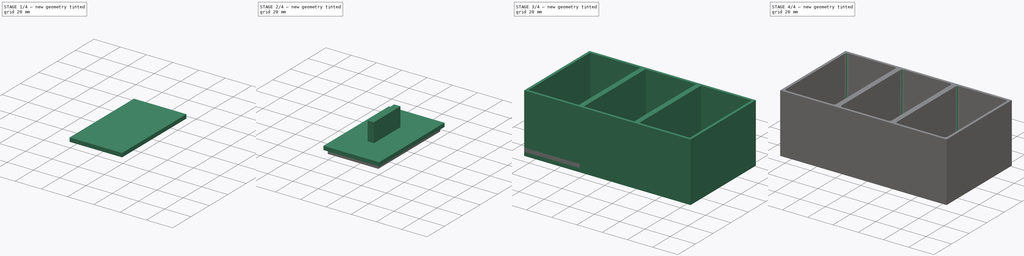
[diagram: build sequence overview — one tinted view per stage of 4, left to right]
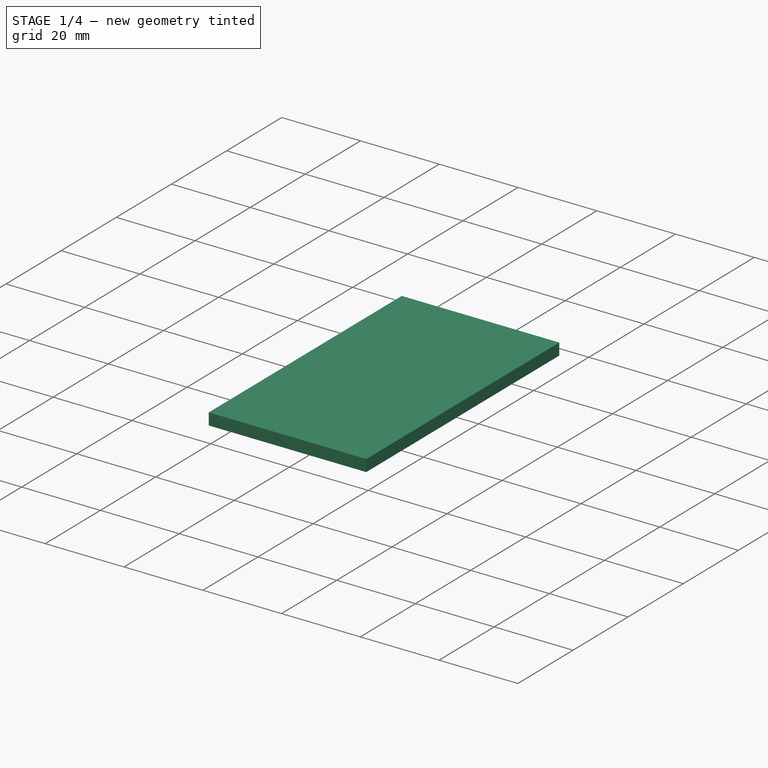
[diagram: stage 1 of 4 — iso view after this stage's code; geometry added in this stage tinted green]
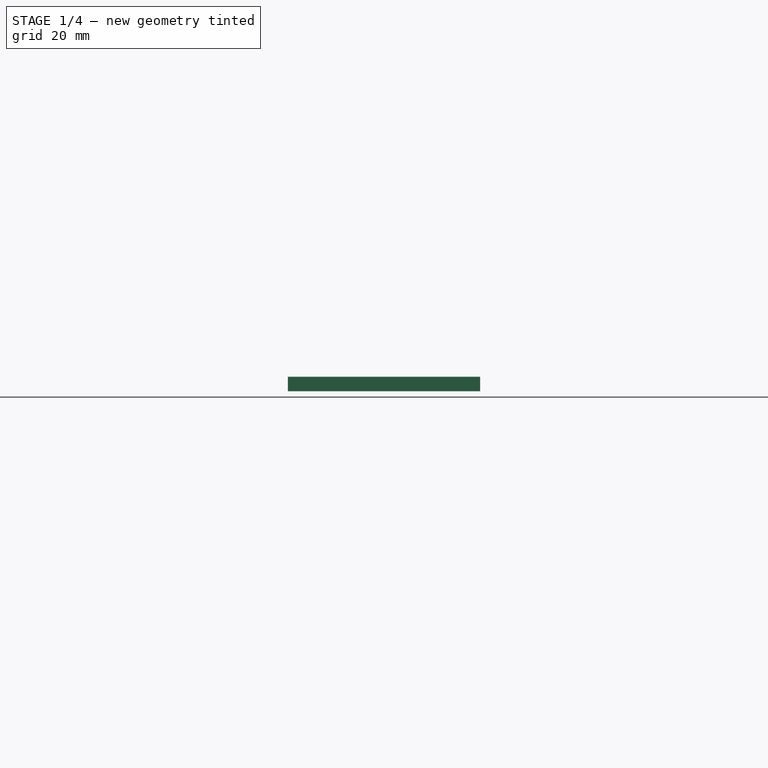
[diagram: stage 1 of 4 — front view after this stage's code; geometry added in this stage tinted green]
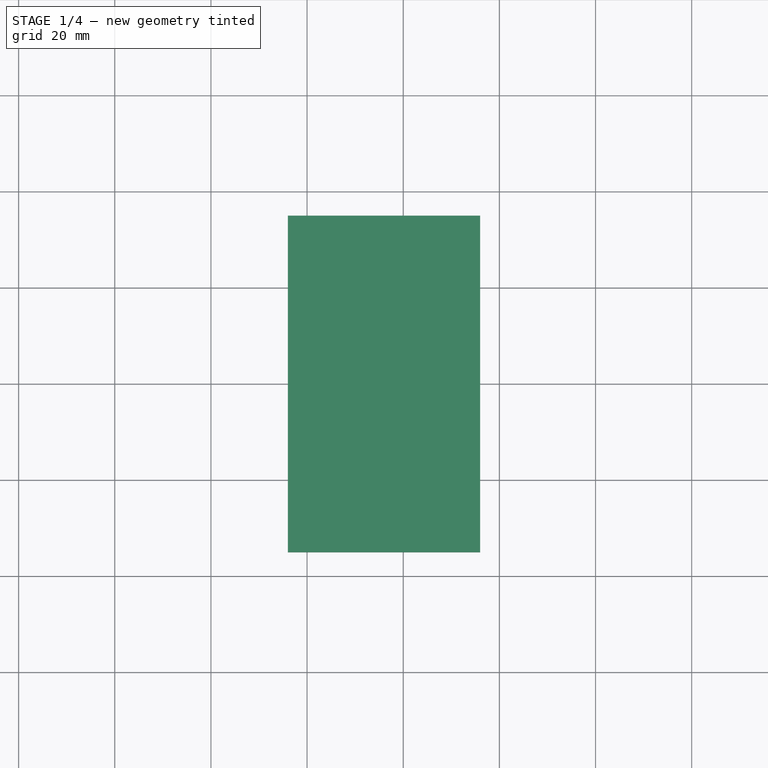
[diagram: stage 1 of 4 — top view after this stage's code; geometry added in this stage tinted green]
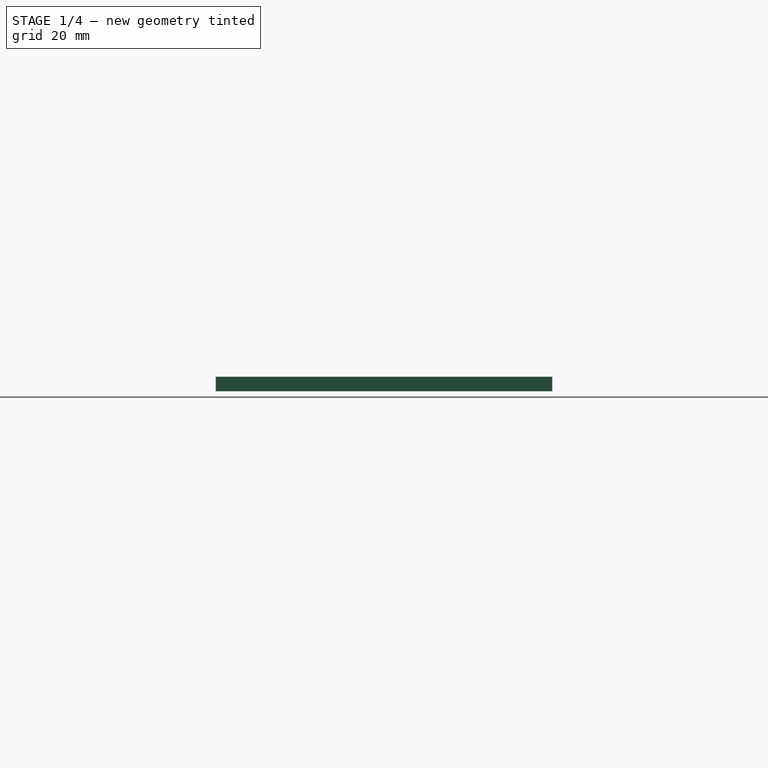
[diagram: stage 1 of 4 — right view after this stage's code; geometry added in this stage tinted green]
FCSTD DOCUMENT  (FreeCAD 1.0R39109 (Git))
Label: CompartmentedContainer
License: Creative Commons Attribution 4.0
LicenseURL: https://creativecommons.org/licenses/by/4.0/
objects: Sketcher::SketchObject×5, PartDesign::Pad×4, PartDesign::Fillet×3, PartDesign::Body×2, App::Part×2, Spreadsheet::Sheet×1, PartDesign::Pocket×1, PartDesign::LinearPattern×1, PartDesign::ShapeBinder×1
note: 39 computed .brp shape members not serialized (recipe doc carries the construction recipe); baked Part::Feature solids carry a one-line shape summary decoded from their .brp

FEATURE [Spreadsheet::Sheet] Spreadsheet  label="config"
  cells = A3='compartmentWidth; B3='mm; C3(compartmentWidth)=40; A4='compartmentLength; B4='mm; C4(compartmentLength)=70; A5='compartmentDepth; B5='mm; C5(compartmentDepth)=45; A6='numberOfComparments; B6='none; C6(numberOfCompartments)=3; A7='sealWidth; B7='mm; C7(sealWidth)=0; A8='outerShellThickness; B8='mm; C8(outerShellThickness)=2; A9='innerShellThickness; B9='mm; C9(innerShellThickness)=0; A10='spaceBetweenCompartments; B10='mm; C10(spaceBetweenCompartments)=4; A11='plugDepth; B11='mm; C11(plugDepth)=3; A12='plugLip; B12='mm; C12(plugLip)=2; A13='plugLipDepth; B13='mm; C13(plugLipDepth)=3; A14='plugHandleWidth; B14='mm; C14(plugHandleWidth)=5; A15='plugHandleLength; B15='mm; C15(plugHandleLength)=30; A16='plugHandleHeight; B16='mm; C16(plugHandleHeight)=15; A17='containerFilletRadius; B17='mm; C17(containerFilletRadius)=2
FEATURE [Sketcher::SketchObject] Sketch
  ArcFitTolerance = 1e-06
  AttachmentSupport = -> [XY_Plane003]
  FullyConstrained = true
  MakeInternals = false
  MapMode = 5
  expr: Constraints[10] = <<config>>.compartmentLength + 2 * (<<config>>.outerShellThickness + <<config>>.sealWidth + <<config>>.innerShellThickness)
  expr: Constraints[9] = <<config>>.compartmentWidth * <<config>>.numberOfCompartments + 2 * (<<config>>.outerShellThickness + <<config>>.sealWidth + <<config>>.innerShellThickness) + (<<config>>.numberOfCompartments - 1) * <<config>>.spaceBetweenCompartments
  sketch-geometry (5):
    g0: LineSegment StartX=-66 StartY=-37 StartZ=0 EndX=66 EndY=-37 EndZ=0
    g1: LineSegment StartX=66 StartY=-37 StartZ=0 EndX=66 EndY=37 EndZ=0
    g2: LineSegment StartX=66 StartY=37 StartZ=0 EndX=-66 EndY=37 EndZ=0
    g3: LineSegment StartX=-66 StartY=37 StartZ=0 EndX=-66 EndY=-37 EndZ=0
    g4: GeomPoint [constr] X=0 Y=0 Z=0
  constraints (12):
    c: Coincident(g0,g1)
    c: Coincident(g1,g2)
    c: Coincident(g2,g3)
    c: Coincident(g3,g0)
    c: Horizontal(g0)
    c: Horizontal(g2)
    c: Vertical(g1)
    c: Vertical(g3)
    c: Symmetric(g2,g0,g4)
    c: Distance(g1,g3) = 132
    c: Distance(g0,g2) = 74
    c: Coincident(g4,g-1)
FEATURE [PartDesign::Pad] Pad
  Direction = (0,0,1)
  Length = 47
  Length2 = 10
  Profile = -> Sketch
  ReferenceAxis = -> Sketch [N_Axis]
  Suppressed = false
  Type = 0
  expr: Length = <<config>>.compartmentDepth + <<config>>.outerShellThickness
FEATURE [PartDesign::ShapeBinder] ShapeBinder
  Placement = pos=(0,0,47) rot=(0,0,1;0rad)
  Support = -> [Sketch001]
  TraceSupport = false
FEATURE [Sketcher::SketchObject] Sketch002
  ArcFitTolerance = 1e-06
  AttachmentSupport = -> [XY_Plane004]
  ExternalGeometry = -> [ShapeBinder]
  FullyConstrained = true
  MakeInternals = false
  MapMode = 5
  sketch-geometry (4):
    g0: LineSegment StartX=-64 StartY=35 StartZ=0 EndX=-64 EndY=-35 EndZ=0
    g1: LineSegment StartX=-64 StartY=-35 StartZ=0 EndX=-24 EndY=-35 EndZ=0
    g2: LineSegment StartX=-24 StartY=-35 StartZ=0 EndX=-24 EndY=35 EndZ=0
    g3: LineSegment StartX=-24 StartY=35 StartZ=0 EndX=-64 EndY=35 EndZ=0
  constraints (10):
    c: Coincident(g0,g1)
    c: Coincident(g1,g2)
    c: Coincident(g2,g3)
    c: Coincident(g3,g0)
    c: Vertical(g0)
    c: Vertical(g2)
    c: Horizontal(g1)
    c: Horizontal(g3)
    c: Coincident(g0,g-3)
    c: Coincident(g1,g-4)
FEATURE [PartDesign::Pad] Pad001
  Direction = (0,0,1)
  Length = 3
  Length2 = 10
  Profile = -> Sketch002
  ReferenceAxis = -> Sketch002 [N_Axis]
  Suppressed = false
  Type = 0
  expr: Length = <<config>>.plugDepth
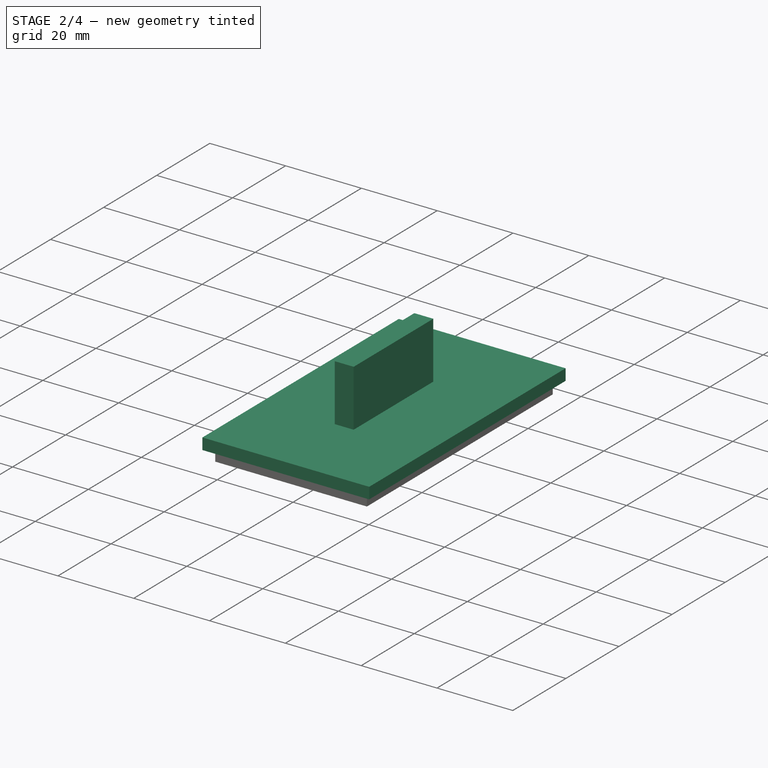
[diagram: stage 2 of 4 — iso view after this stage's code; geometry added in this stage tinted green]
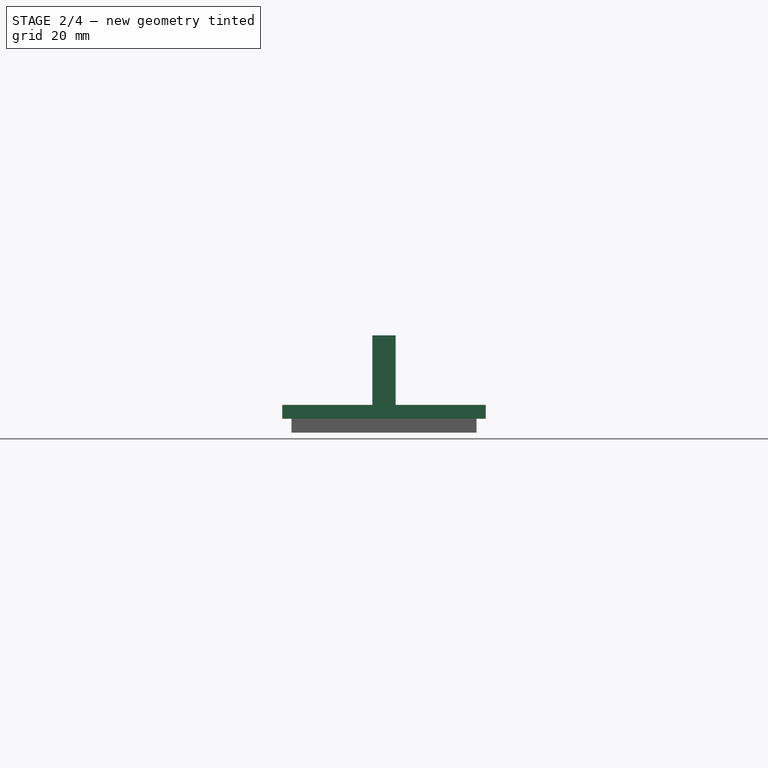
[diagram: stage 2 of 4 — front view after this stage's code; geometry added in this stage tinted green]
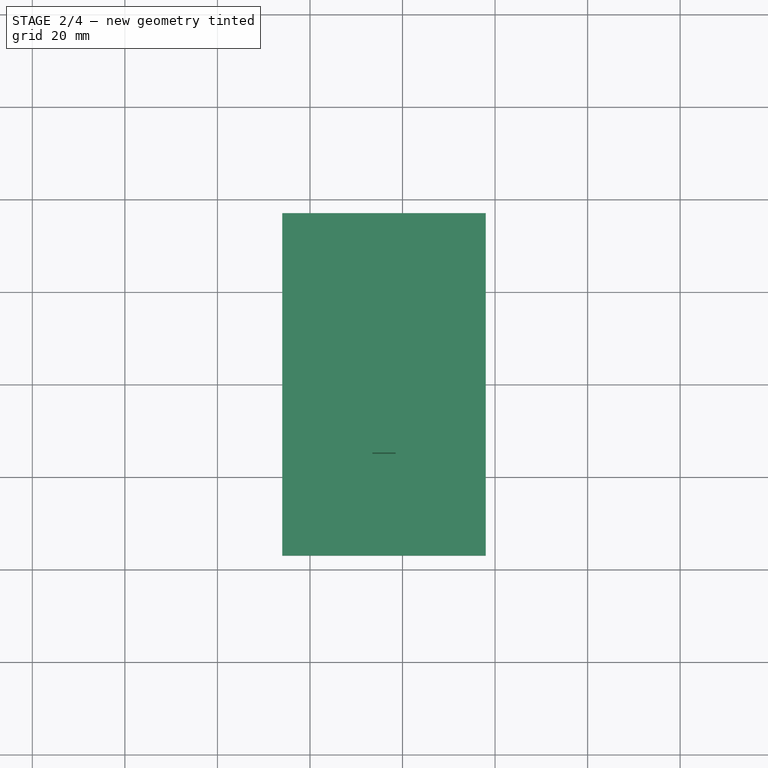
[diagram: stage 2 of 4 — top view after this stage's code; geometry added in this stage tinted green]
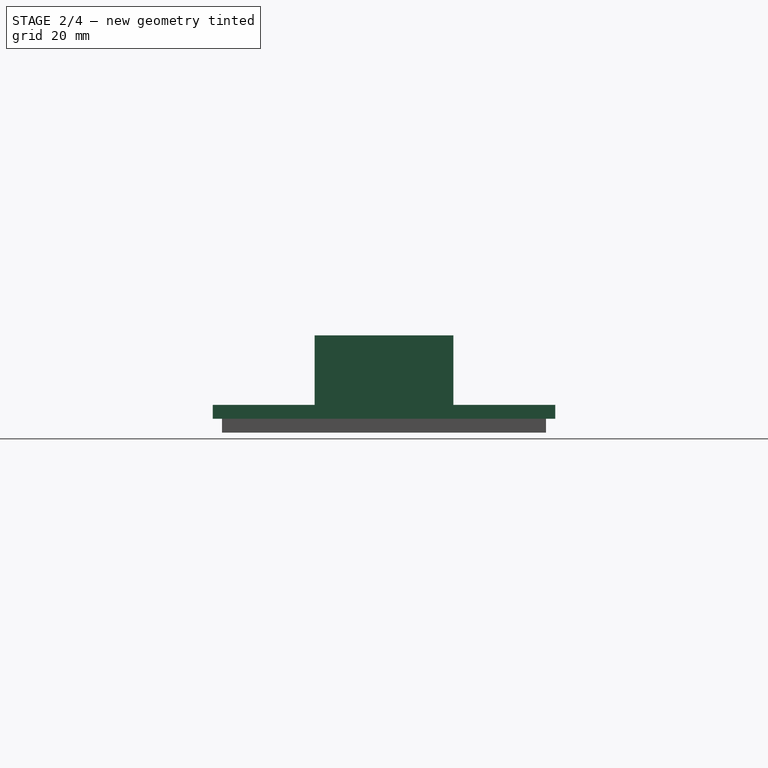
[diagram: stage 2 of 4 — right view after this stage's code; geometry added in this stage tinted green]
FEATURE [Sketcher::SketchObject] Sketch003
  ArcFitTolerance = 1e-06
  AttachmentOffset = pos=(0,0,3) rot=(0,0,1;0rad)
  AttachmentSupport = -> [XY_Plane004]
  ExternalGeometry = -> [ShapeBinder]
  FullyConstrained = true
  MakeInternals = false
  MapMode = 5
  Placement = pos=(0,0,3) rot=(0,0,1;0rad)
  expr: .AttachmentOffset.Base.z = <<config>>.plugDepth
  expr: Constraints[10] = <<config>>.plugLip
  expr: Constraints[11] = <<config>>.plugLip
  expr: Constraints[8] = <<config>>.plugLip
  expr: Constraints[9] = <<config>>.plugLip
  sketch-geometry (4):
    g0: LineSegment StartX=-66 StartY=37 StartZ=0 EndX=-66 EndY=-37 EndZ=0
    g1: LineSegment StartX=-66 StartY=-37 StartZ=0 EndX=-22 EndY=-37 EndZ=0
    g2: LineSegment StartX=-22 StartY=-37 StartZ=0 EndX=-22 EndY=37 EndZ=0
    g3: LineSegment StartX=-22 StartY=37 StartZ=0 EndX=-66 EndY=37 EndZ=0
  constraints (12):
    c: Coincident(g0,g1)
    c: Coincident(g1,g2)
    c: Coincident(g2,g3)
    c: Coincident(g3,g0)
    c: Vertical(g0)
    c: Vertical(g2)
    c: Horizontal(g1)
    c: Horizontal(g3)
    c: DistanceX(g0,g-3) = 2
    c: DistanceX(g-4,g1) = 2
    c: DistanceY(g0,g-4) = 2
    c: DistanceY(g-3,g0) = 2
FEATURE [PartDesign::Pad] Pad002
  BaseFeature = -> Pad001
  Direction = (0,0,1)
  Length = 3
  Length2 = 10
  Profile = -> Sketch003
  ReferenceAxis = -> Sketch003 [N_Axis]
  Suppressed = false
  Type = 0
  expr: Length = <<config>>.plugLipDepth
FEATURE [Sketcher::SketchObject] Sketch004
  ArcFitTolerance = 1e-06
  AttachmentOffset = pos=(0,0,6) rot=(0,0,1;0rad)
  AttachmentSupport = -> [XY_Plane004]
  ExternalGeometry = -> [ShapeBinder]
  FullyConstrained = true
  MakeInternals = false
  MapMode = 5
  Placement = pos=(0,0,6) rot=(0,0,1;0rad)
  expr: .AttachmentOffset.Base.z = <<config>>.plugDepth + <<config>>.plugLipDepth
  expr: Constraints[10] = <<config>>.plugHandleWidth
  expr: Constraints[11] = <<config>>.plugHandleLength
  sketch-geometry (6):
    g0: GeomPoint X=-44 Y=-3.5e-15 Z=0
    g1: LineSegment StartX=-46.5 StartY=-15 StartZ=0 EndX=-41.5 EndY=-15 EndZ=0
    g2: LineSegment StartX=-41.5 StartY=-15 StartZ=0 EndX=-41.5 EndY=15 EndZ=0
    g3: LineSegment StartX=-41.5 StartY=15 StartZ=0 EndX=-46.5 EndY=15 EndZ=0
    g4: LineSegment StartX=-46.5 StartY=15 StartZ=0 EndX=-46.5 EndY=-15 EndZ=0
    g5: GeomPoint [constr] X=-44 Y=-3.5e-15 Z=0
  constraints (13):
    c: Symmetric(g-3,g-4,g0)
    c: Coincident(g1,g2)
    c: Coincident(g2,g3)
    c: Coincident(g3,g4)
    c: Coincident(g4,g1)
    c: Horizontal(g1)
    c: Horizontal(g3)
    c: Vertical(g2)
    c: Vertical(g4)
    c: Symmetric(g3,g1,g5)
    c: Distance(g2,g4) = 5
    c: Distance(g1,g3) = 30
    c: Coincident(g5,g0)
FEATURE [PartDesign::Pad] Pad003
  BaseFeature = -> Pad002
  Direction = (0,0,1)
  Length = 15
  Length2 = 10
  Profile = -> Sketch004
  ReferenceAxis = -> Sketch004 [N_Axis]
  Suppressed = false
  Type = 0
  expr: Length = <<config>>.plugHandleHeight
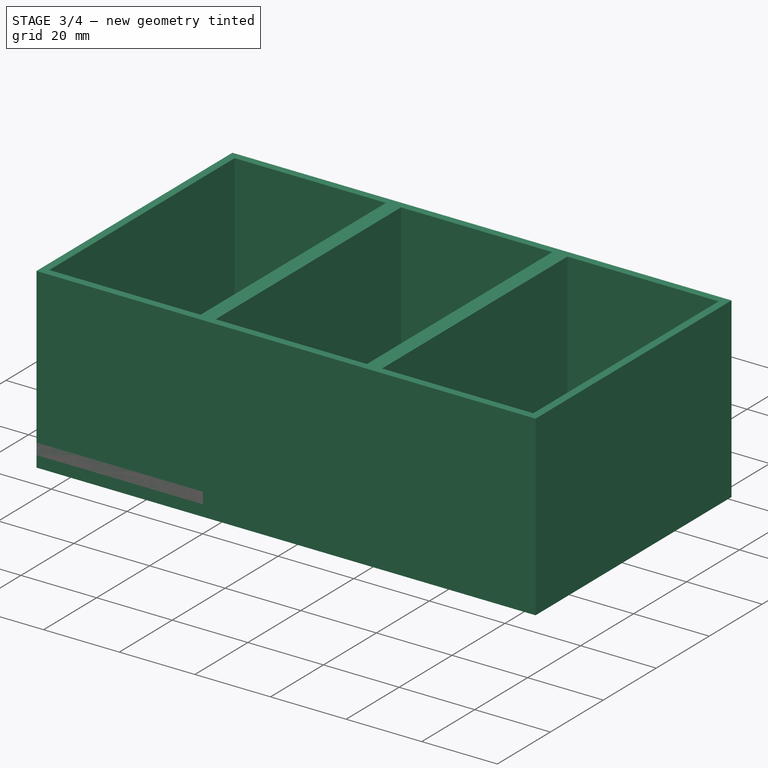
[diagram: stage 3 of 4 — iso view after this stage's code; geometry added in this stage tinted green]
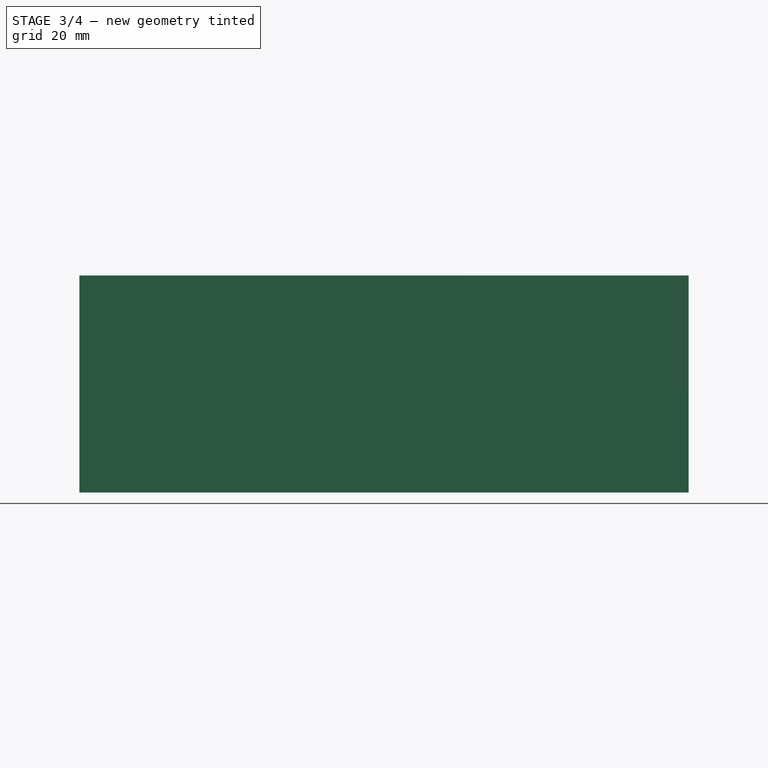
[diagram: stage 3 of 4 — front view after this stage's code; geometry added in this stage tinted green]
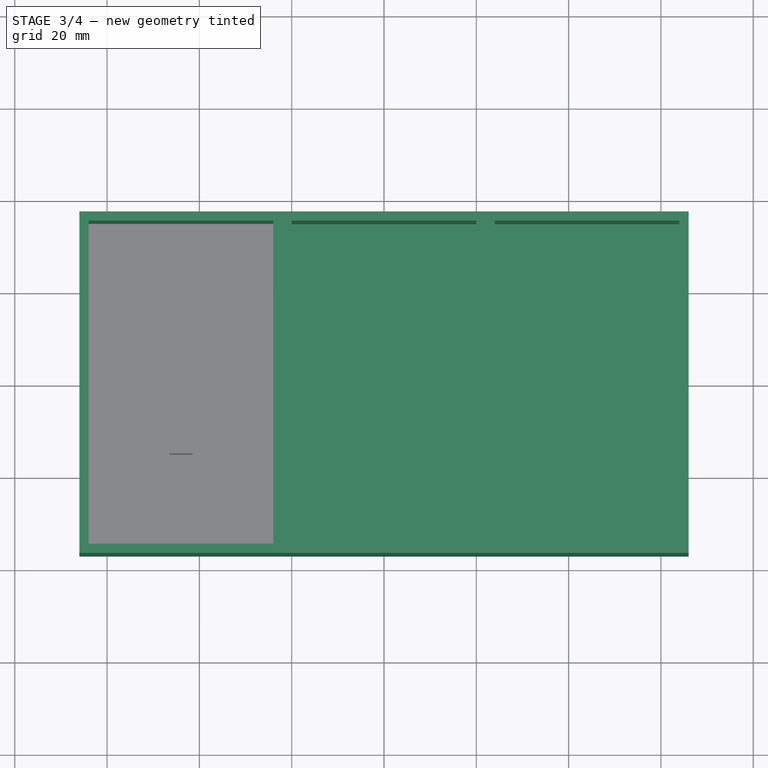
[diagram: stage 3 of 4 — top view after this stage's code; geometry added in this stage tinted green]
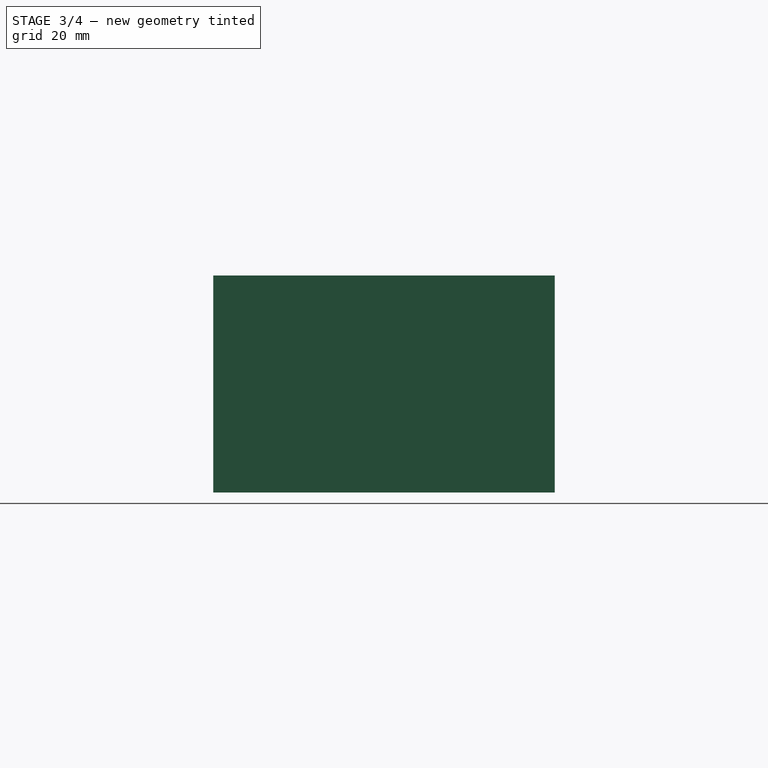
[diagram: stage 3 of 4 — right view after this stage's code; geometry added in this stage tinted green]
FEATURE [Sketcher::SketchObject] Sketch001
  ArcFitTolerance = 1e-06
  AttachmentOffset = pos=(0,0,47) rot=(0,0,1;0rad)
  AttachmentSupport = -> [XY_Plane003]
  ExternalGeometry = -> [Pad]
  FullyConstrained = true
  MakeInternals = false
  MapMode = 5
  Placement = pos=(0,0,47) rot=(0,0,1;0rad)
  expr: .AttachmentOffset.Base.z = <<config>>.compartmentDepth + <<config>>.outerShellThickness
  expr: Constraints[10] = <<config>>.compartmentWidth
  expr: Constraints[7] = <<config>>.compartmentLength
  expr: Constraints[9] = <<config>>.innerShellThickness + <<config>>.sealWidth + <<config>>.outerShellThickness
  sketch-geometry (4):
    g0: LineSegment StartX=-64 StartY=35 StartZ=0 EndX=-64 EndY=-35 EndZ=0
    g1: LineSegment StartX=-64 StartY=-35 StartZ=0 EndX=-24 EndY=-35 EndZ=0
    g2: LineSegment StartX=-24 StartY=-35 StartZ=0 EndX=-24 EndY=35 EndZ=0
    g3: LineSegment StartX=-24 StartY=35 StartZ=0 EndX=-64 EndY=35 EndZ=0
  constraints (11):
    c: Coincident(g0,g1)
    c: Coincident(g1,g2)
    c: Coincident(g2,g3)
    c: Coincident(g3,g0)
    c: Vertical(g0)
    c: Horizontal(g1)
    c: Horizontal(g3)
    c: DistanceY(g0,g0) = 70
    c: Symmetric(g2,g1,g-1)
    c: DistanceX(g-4,g0) = 2
    c: DistanceX(g3,g3) = 40
FEATURE [PartDesign::Pocket] Pocket
  BaseFeature = -> Pad
  Direction = (0,0,-1)
  Length = 45
  Length2 = 5
  Profile = -> Sketch001
  ReferenceAxis = -> Sketch001 [N_Axis]
  Suppressed = false
  Type = 0
  expr: Length = <<config>>.compartmentDepth
FEATURE [PartDesign::LinearPattern] LinearPattern
  BaseFeature = -> Pocket
  Direction = -> Sketch001 [H_Axis]
  Length = 88
  Mode = 0
  Occurrences = 3
  Offset = 44
  Originals = -> [Pocket]
  Suppressed = false
  TransformMode = 0
  expr: Length = (<<config>>.numberOfCompartments - 1) * (<<config>>.spaceBetweenCompartments + <<config>>.compartmentWidth)
  expr: Occurrences = <<config>>.numberOfCompartments
FEATURE [PartDesign::Body] Body  label="ContainerBody"
  AllowCompound = false
  Group = -> [Sketch,Pad,Sketch001,Pocket,LinearPattern,Fillet,Fillet003]
  Origin = -> Origin003
  Tip = -> Fillet003
FEATURE [App::Part] Part  label="container"
  Group = -> [Body]
  Origin = -> Origin
FEATURE [PartDesign::Fillet] Fillet004
  Base = -> Pad003 [Edge1,Edge5,Edge2,Edge8]
  BaseFeature = -> Pad003
  Radius = 2
  SupportTransform = false
  Suppressed = false
  UseAllEdges = false
  expr: Radius = <<config>>.containerFilletRadius
FEATURE [PartDesign::Body] Body001  label="plugBody"
  AllowCompound = false
  Group = -> [ShapeBinder,Sketch002,Pad001,Sketch003,Pad002,Sketch004,Pad003,Fillet004]
  Origin = -> Origin004
  Tip = -> Fillet004
FEATURE [App::Part] Part002  label="plug"
  Group = -> [Body001]
  Origin = -> Origin002
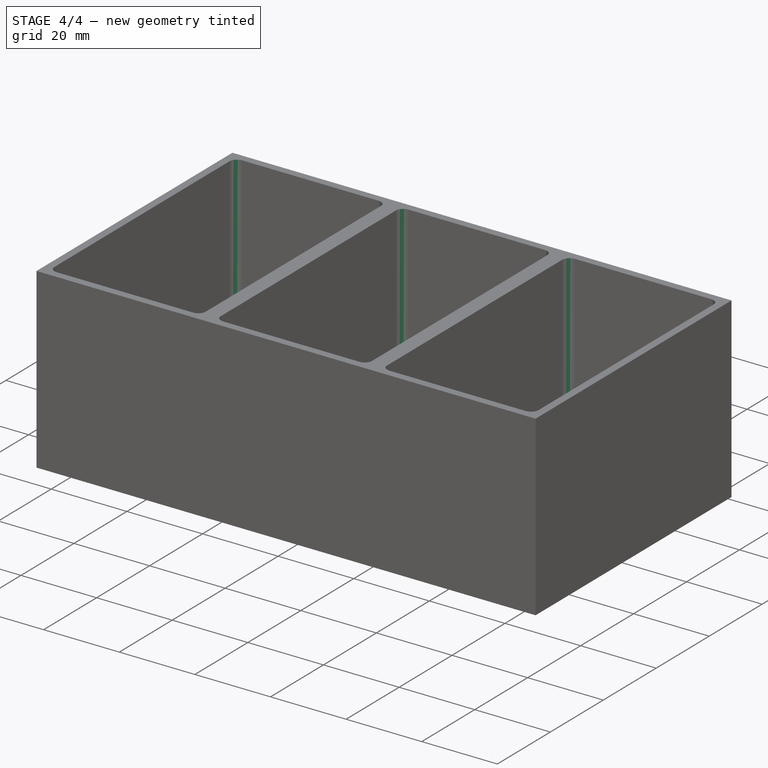
[diagram: stage 4 of 4 — iso view after this stage's code; geometry added in this stage tinted green]
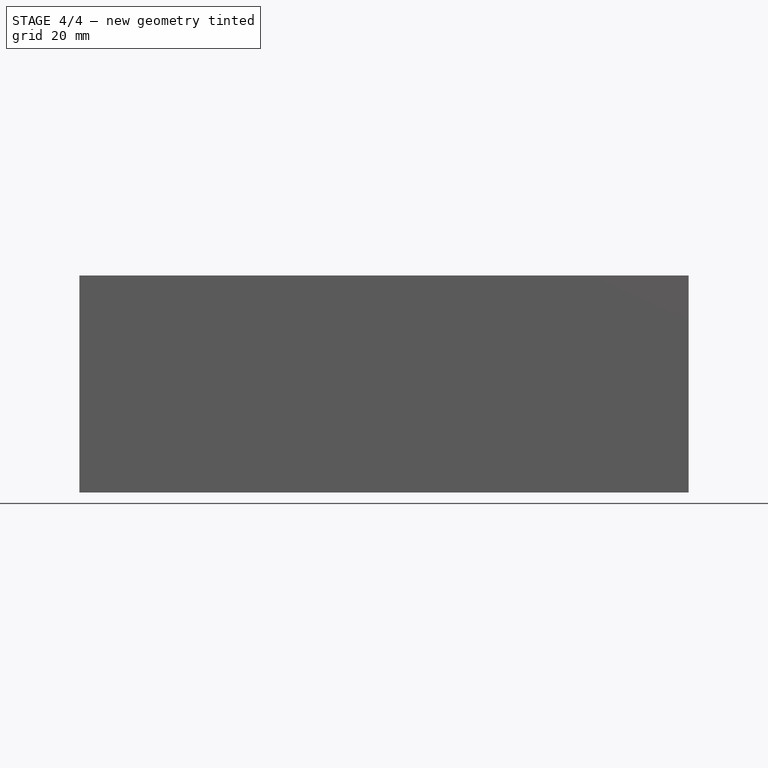
[diagram: stage 4 of 4 — front view after this stage's code; geometry added in this stage tinted green]
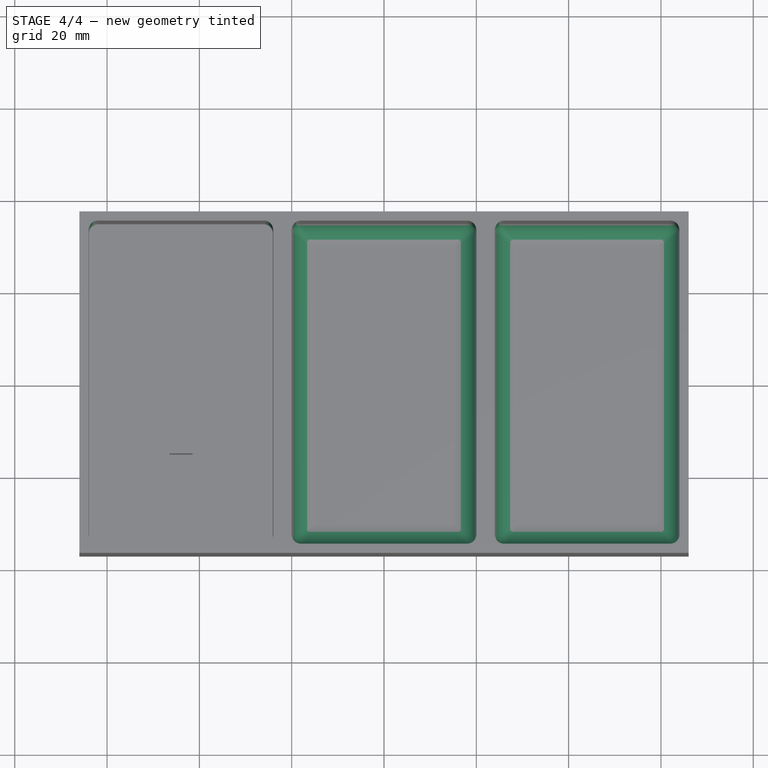
[diagram: stage 4 of 4 — top view after this stage's code; geometry added in this stage tinted green]
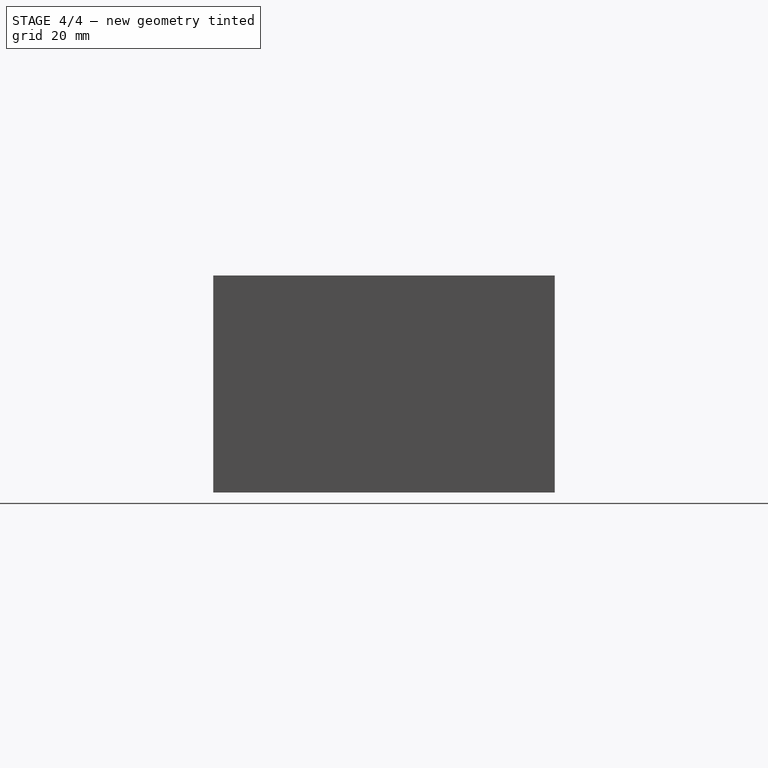
[diagram: stage 4 of 4 — right view after this stage's code; geometry added in this stage tinted green]
FEATURE [PartDesign::Fillet] Fillet
  Base = -> LinearPattern [Face19,Face20,Face21]
  BaseFeature = -> LinearPattern
  Radius = 5
  SupportTransform = false
  Suppressed = false
  UseAllEdges = false
FEATURE [PartDesign::Fillet] Fillet003
  Base = -> Fillet [Edge1,Edge41,Edge49,Edge5,Edge47,Edge55,Edge53,Edge45,Edge26,Edge51,Edge43,Edge4]
  BaseFeature = -> Fillet
  Radius = 2
  SupportTransform = false
  Suppressed = false
  UseAllEdges = false
  expr: Radius = <<config>>.containerFilletRadius
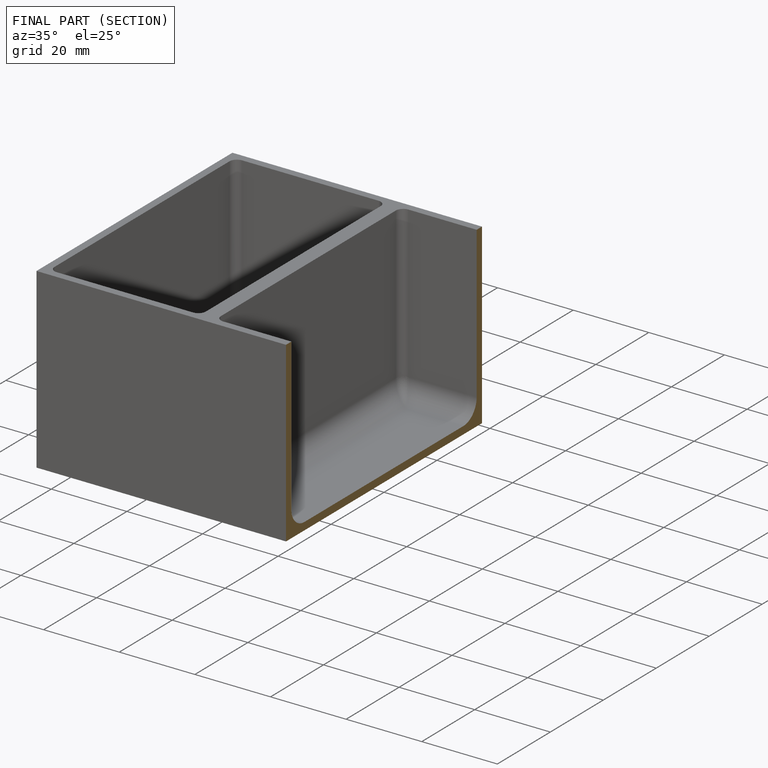
[diagram: finished part — half-section view (interior)]
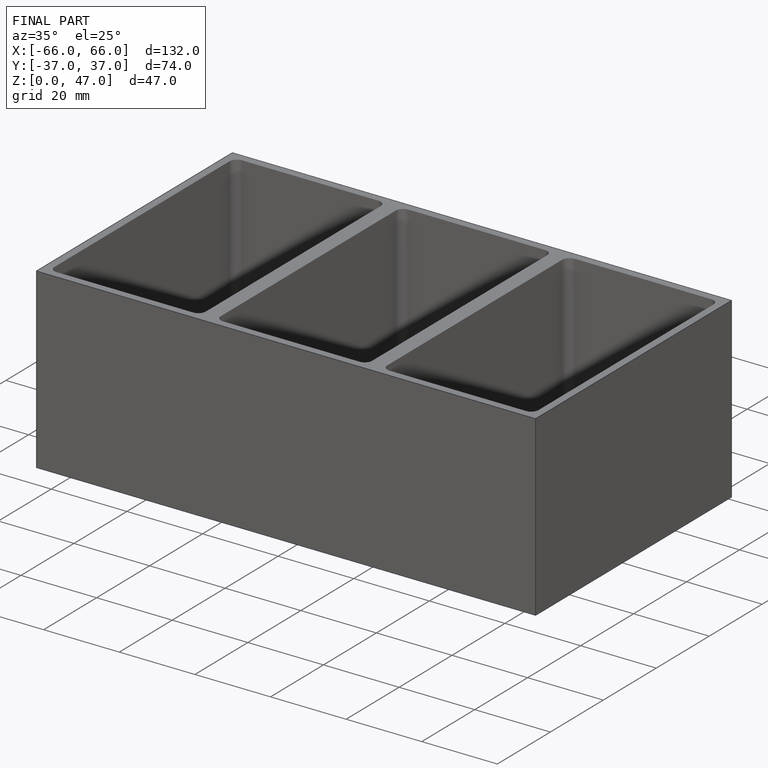
[diagram: finished part — iso view with bounding-box wireframe]
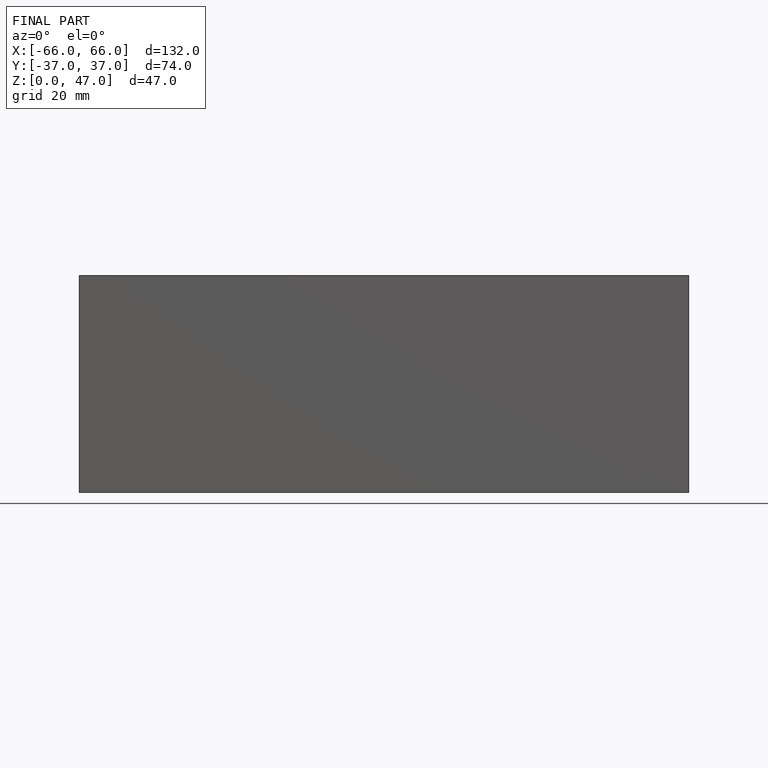
[diagram: finished part — front view with bounding-box wireframe]
